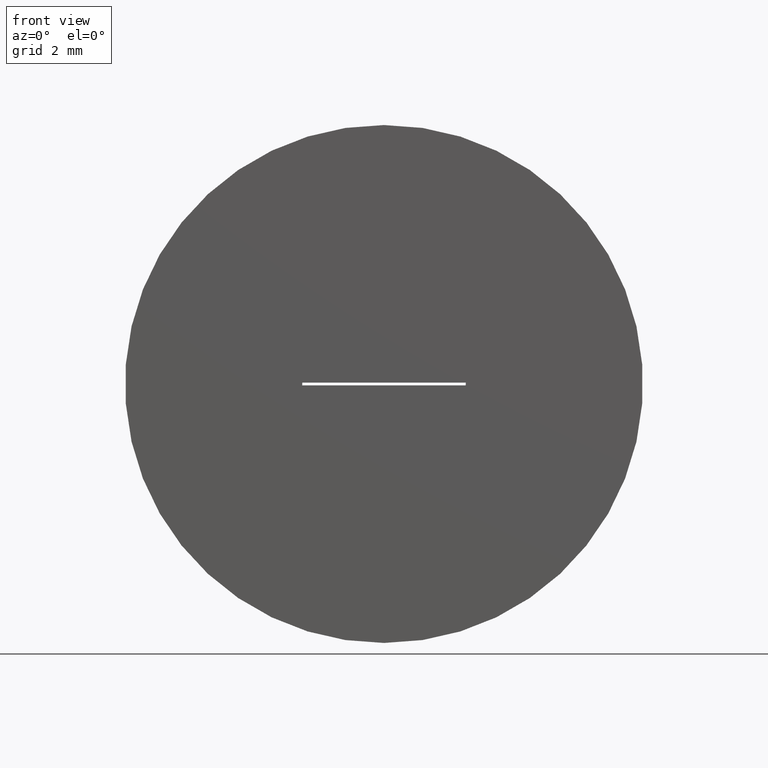
[diagram: clean part render]
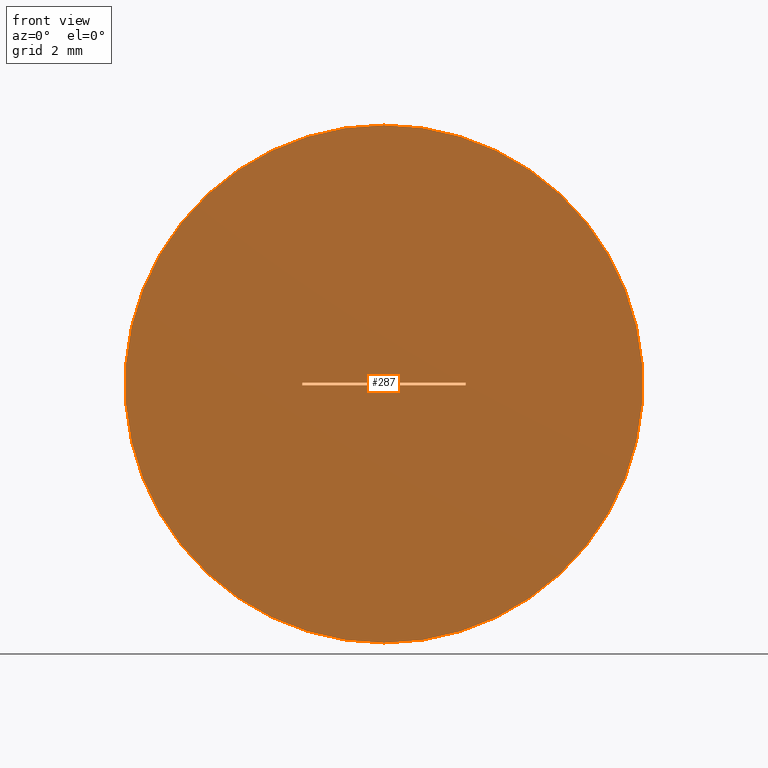
[diagram: same view with one face highlighted and labeled with its STEP entity id]
A machine part, front view. The second image highlights one B-rep face of the part: STEP entity #287.
In plain terms, the highlighted planar face has unit normal (0, 1, 0).
Its self-contained STEP definition (entity closure, byte-faithful):
#13 = CARTESIAN_POINT ( 'NONE',  ( 1.500000000000000000, 0.000000000000000000, 0.02500000000000000486 ) ) ;
#18 = EDGE_LOOP ( 'NONE', ( #48, #156 ) ) ;
#24 = VERTEX_POINT ( 'NONE', #124 ) ;
#33 = DIRECTION ( 'NONE',  ( 0.000000000000000000, 1.000000000000000000, 0.000000000000000000 ) ) ;
#48 = ORIENTED_EDGE ( 'NONE', *, *, #197, .F. ) ;
#60 = FACE_OUTER_BOUND ( 'NONE', #18, .T. ) ;
#68 = EDGE_LOOP ( 'NONE', ( #284, #230, #157, #136 ) ) ;
#71 = VERTEX_POINT ( 'NONE', #162 ) ;
#79 = DIRECTION ( 'NONE',  ( -0.000000000000000000, -0.000000000000000000, -1.000000000000000000 ) ) ;
#80 = DIRECTION ( 'NONE',  ( 0.000000000000000000, -0.000000000000000000, 1.000000000000000000 ) ) ;
#82 = LINE ( 'NONE', #247, #296 ) ;
#84 = CARTESIAN_POINT ( 'NONE',  ( 0.000000000000000000, 0.000000000000000000, 0.000000000000000000 ) ) ;
#86 = DIRECTION ( 'NONE',  ( 0.000000000000000000, 1.000000000000000000, 0.000000000000000000 ) ) ;
#89 = VERTEX_POINT ( 'NONE', #143 ) ;
#99 = VECTOR ( 'NONE', #79, 1000.000000000000000 ) ;
#100 = LINE ( 'NONE', #192, #99 ) ;
#102 = DIRECTION ( 'NONE',  ( 1.000000000000000000, 0.000000000000000000, 0.000000000000000000 ) ) ;
#103 = CARTESIAN_POINT ( 'NONE',  ( 0.000000000000000000, 0.000000000000000000, -4.750000000000000000 ) ) ;
#105 = VECTOR ( 'NONE', #270, 1000.000000000000000 ) ;
#124 = CARTESIAN_POINT ( 'NONE',  ( 5.817072295949927426E-16, 0.000000000000000000, 4.750000000000000000 ) ) ;
#125 = AXIS2_PLACEMENT_3D ( 'NONE', #173, #299, #195 ) ;
#130 = DIRECTION ( 'NONE',  ( 0.000000000000000000, 0.000000000000000000, 1.000000000000000000 ) ) ;
#136 = ORIENTED_EDGE ( 'NONE', *, *, #239, .T. ) ;
#137 = VECTOR ( 'NONE', #102, 1000.000000000000000 ) ;
#143 = CARTESIAN_POINT ( 'NONE',  ( -1.500000000000000000, 0.000000000000000000, 0.02500000000000000486 ) ) ;
#152 = CARTESIAN_POINT ( 'NONE',  ( 0.000000000000000000, 0.000000000000000000, 0.000000000000000000 ) ) ;
#153 = VERTEX_POINT ( 'NONE', #191 ) ;
#156 = ORIENTED_EDGE ( 'NONE', *, *, #220, .F. ) ;
#157 = ORIENTED_EDGE ( 'NONE', *, *, #217, .T. ) ;
#159 = EDGE_CURVE ( 'NONE', #209, #153, #100, .T. ) ;
#162 = CARTESIAN_POINT ( 'NONE',  ( -1.500000000000000000, 0.000000000000000000, -0.02499999999999999792 ) ) ;
#170 = LINE ( 'NONE', #302, #105 ) ;
#172 = DIRECTION ( 'NONE',  ( 0.000000000000000000, 0.000000000000000000, 1.000000000000000000 ) ) ;
#173 = CARTESIAN_POINT ( 'NONE',  ( 0.000000000000000000, 0.000000000000000000, 0.000000000000000000 ) ) ;
#174 = FACE_BOUND ( 'NONE', #68, .T. ) ;
#191 = CARTESIAN_POINT ( 'NONE',  ( 1.500000000000000000, 0.000000000000000000, -0.02499999999999999792 ) ) ;
#192 = CARTESIAN_POINT ( 'NONE',  ( 1.500000000000000000, 0.000000000000000000, -0.02499999999999999792 ) ) ;
#195 = DIRECTION ( 'NONE',  ( 0.000000000000000000, 0.000000000000000000, 1.000000000000000000 ) ) ;
#197 = EDGE_CURVE ( 'NONE', #252, #24, #211, .T. ) ;
#199 = CARTESIAN_POINT ( 'NONE',  ( -1.500000000000000000, 0.000000000000000000, 0.02500000000000000486 ) ) ;
#209 = VERTEX_POINT ( 'NONE', #13 ) ;
#211 = CIRCLE ( 'NONE', #249, 4.750000000000000000 ) ;
#217 = EDGE_CURVE ( 'NONE', #71, #89, #82, .T. ) ;
#220 = EDGE_CURVE ( 'NONE', #24, #252, #223, .T. ) ;
#222 = LINE ( 'NONE', #199, #137 ) ;
#223 = CIRCLE ( 'NONE', #125, 4.750000000000000000 ) ;
#230 = ORIENTED_EDGE ( 'NONE', *, *, #260, .T. ) ;
#239 = EDGE_CURVE ( 'NONE', #89, #209, #222, .T. ) ;
#247 = CARTESIAN_POINT ( 'NONE',  ( -1.500000000000000000, 0.000000000000000000, -0.02499999999999999792 ) ) ;
#249 = AXIS2_PLACEMENT_3D ( 'NONE', #152, #86, #130 ) ;
#252 = VERTEX_POINT ( 'NONE', #103 ) ;
#260 = EDGE_CURVE ( 'NONE', #153, #71, #170, .T. ) ;
#270 = DIRECTION ( 'NONE',  ( -1.000000000000000000, -0.000000000000000000, -0.000000000000000000 ) ) ;
#284 = ORIENTED_EDGE ( 'NONE', *, *, #159, .T. ) ;
#287 = ADVANCED_FACE ( 'NONE', ( #60, #174 ), #298, .F. ) ;
#293 = AXIS2_PLACEMENT_3D ( 'NONE', #84, #33, #80 ) ;
#296 = VECTOR ( 'NONE', #172, 1000.000000000000000 ) ;
#298 = PLANE ( 'NONE',  #293 ) ;
#299 = DIRECTION ( 'NONE',  ( 0.000000000000000000, 1.000000000000000000, 0.000000000000000000 ) ) ;
#302 = CARTESIAN_POINT ( 'NONE',  ( -1.500000000000000000, 0.000000000000000000, -0.02499999999999999792 ) ) ;